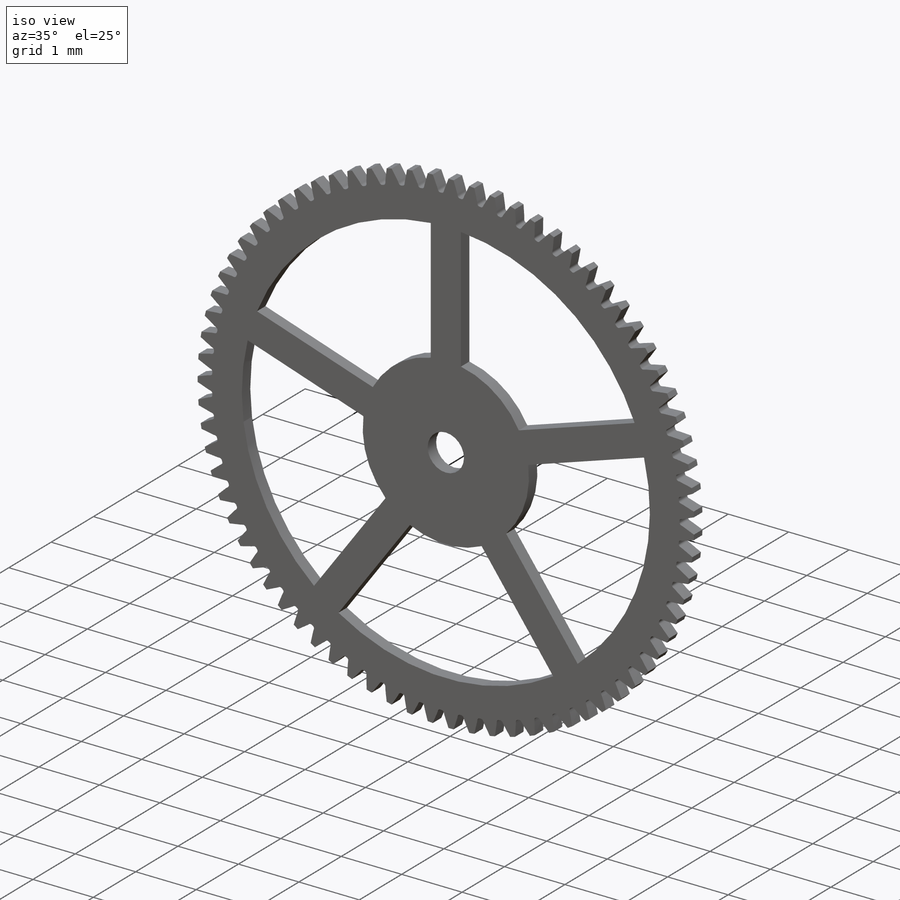
[diagram: iso view]
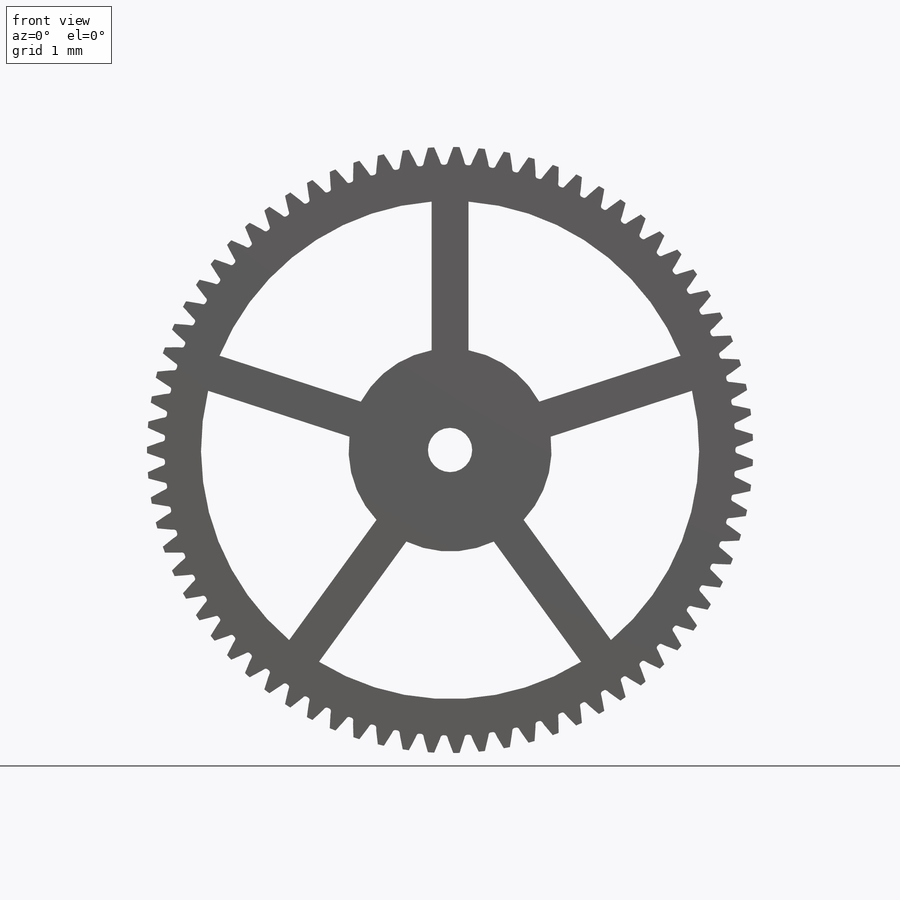
[diagram: front view]
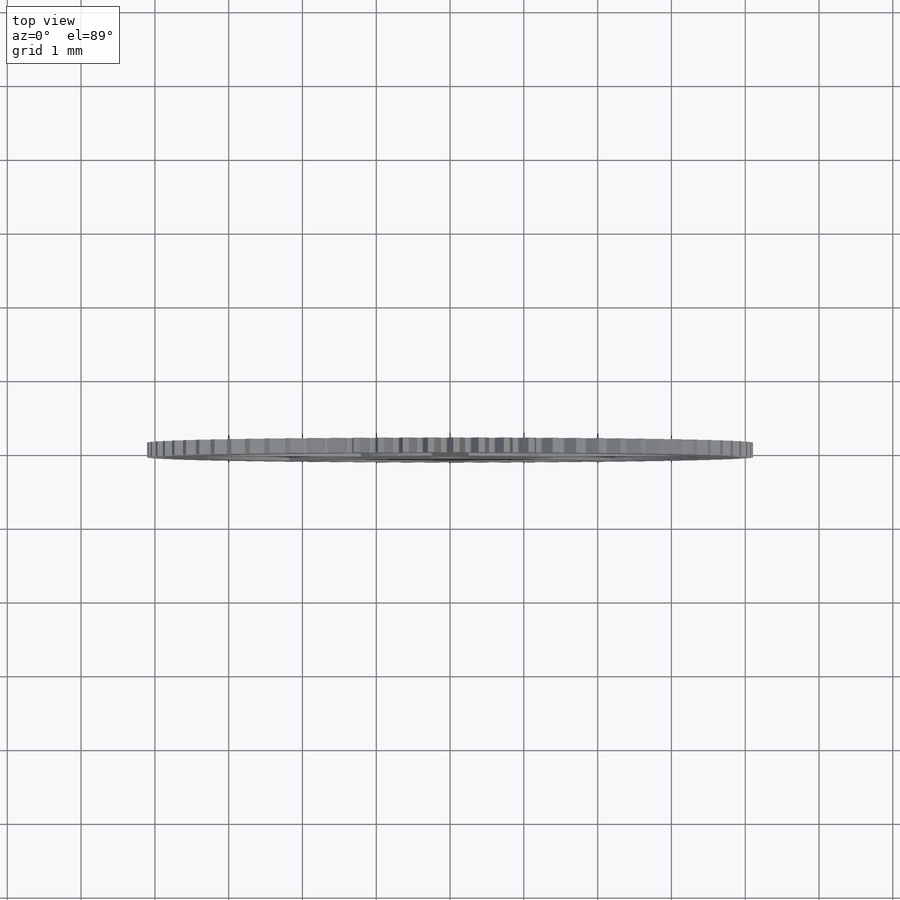
[diagram: top view]
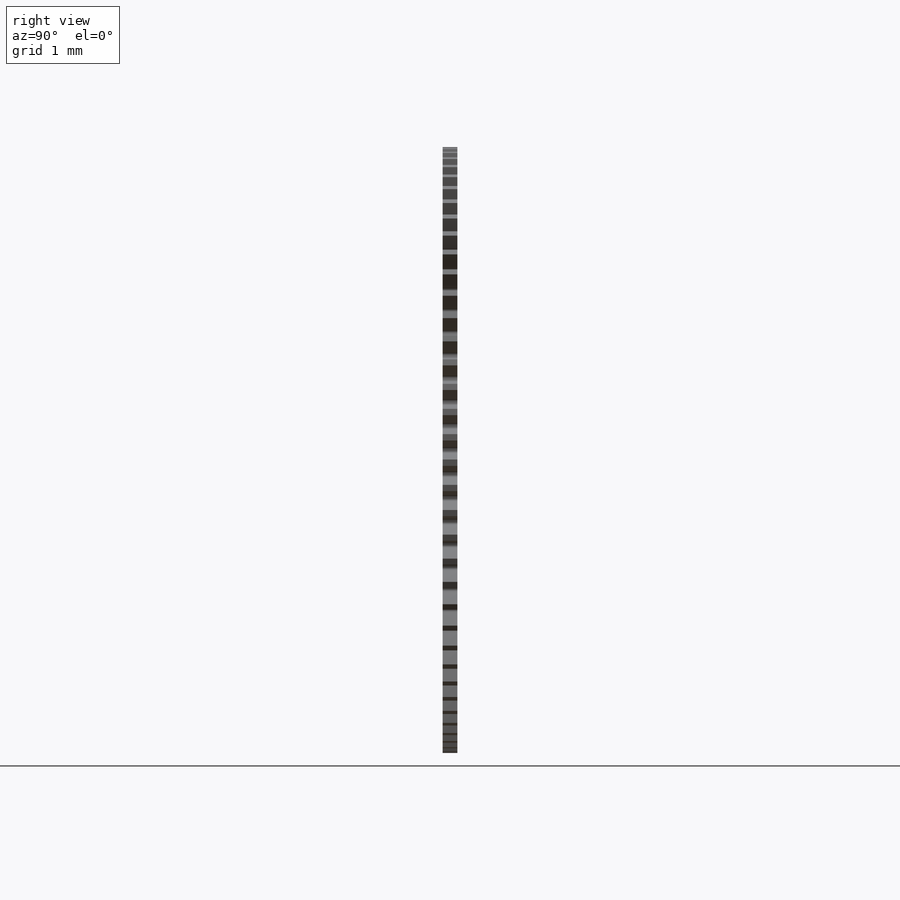
[diagram: right view]
SOLIDWORKS PART (.sldprt)
format: sldprt  version: not decoded by parser v0  size: 1,146,880 bytes
history: native  units: mm
features: sketch x4, plane x3, cut_extrude x2, material x1, revolve x1, pattern_circular x1 (+8 scaffold rows collapsed)
feature tree (20):
  scaffold x8  (default folders/planes/origin — collapsed)
  material  "Material <sin especificar>"
  plane  "Alzado"
  plane  "Planta"
  plane  "Vista lateral"
  sketch  "SketchRevolveEngranaje Abajo(8.2)"
  revolve  "Engranaje Abajo(8.2)"  Angle=360deg
  sketch  "SketchToothEngranaje Abajo(8.2)"
  cut_extrude  "ToothExtrudeCutEngranaje Abajo(8.2)"  Depth=0.1mm
  pattern_circular  "PatternEngranaje Abajo(8.2)"  Count=75 Angle=4.8deg
  sketch  "AuxiliarySketchEngranaje Abajo(8.2)"  dims[PitchDiameter=8.0mm BaseDiameter=~7.517541mm FormDiameter=~7.799883mm MajorDiameter=~8.213333mm MinorDiameter=~7.733333mm]
  sketch  "Croquis5"  dims[c1.D1=0.6mm c1.D2=6.75mm c1.D3=2.75mm c1.D4=~3.549367mm c2.D4=72.0deg c2.D5=~3.549367mm c3.D5=72.0deg c3.D6=~6.452918mm c4.D6=72.0deg c4.D7=~4.558918mm c5.D7=72.0deg c5.D8=0.25mm c5.D9=0.25mm c5.D10=0.25mm c5.D11=0.5mm c5.D12=0.5mm c5.D13=0.5mm c5.D14=0.5mm c5.D15=0.25mm c5.D16=0.5mm c5.D17=0.25mm c6.D8=0.25mm c6.D9=0.25mm]
  cut_extrude  "Cortar-Extruir2"  [1 undecoded]
decode coverage: 5 of 8 modeling features carry decoded parameters
note: ~ marks probable driven/reference dimensions
note: 1 parameter value undecoded
note: suppression state not decoded; provenance and decode notes live in map.json
